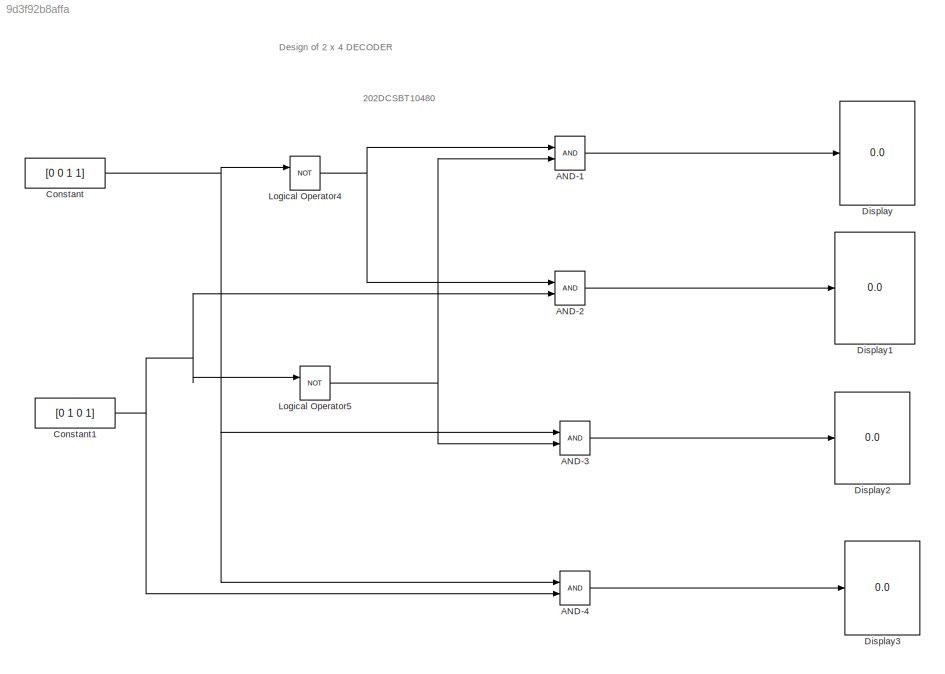
MODEL slx_9d3f92b8affa
KIND model
CONFIG AbsTol = auto
CONFIG EnableMultiTasking = off
CONFIG FixedStep = auto
CONFIG MaxStep = auto
CONFIG MinStep = auto
CONFIG RelTol = 1e-3
CONFIG SampleTimeConstraint = Unconstrained
CONFIG SolverName = VariableStepAuto
CONFIG StartTime = 0.0
CONFIG StopTime = 10.0
BLOCK [Logic] AND-1
  AllPortsSameDT = off
  IconShape = distinctive
  OutDataTypeStr = boolean
BLOCK [Logic] AND-2
  AllPortsSameDT = off
  IconShape = distinctive
  OutDataTypeStr = boolean
BLOCK [Logic] AND-3
  AllPortsSameDT = off
  IconShape = distinctive
  OutDataTypeStr = boolean
BLOCK [Logic] AND-4
  AllPortsSameDT = off
  IconShape = distinctive
  OutDataTypeStr = boolean
BLOCK [Constant] Constant
  Value = [0 0 1 1]
BLOCK [Constant] Constant1
  Value = [0 1 0 1]
BLOCK [Display] Display
  Decimation = 4
BLOCK [Display] Display1
  Decimation = 4
BLOCK [Display] Display2
  Decimation = 4
BLOCK [Display] Display3
  Decimation = 4
BLOCK [Logic] Logical Operator4
  AllPortsSameDT = off
  IconShape = distinctive
  Operator = NOT
  OutDataTypeStr = boolean
BLOCK [Logic] Logical Operator5
  AllPortsSameDT = off
  IconShape = distinctive
  Operator = NOT
  OutDataTypeStr = boolean
ANNOTATION (root): 202DCSBT10480
ANNOTATION (root): Design of 2 x 4 DECODER
LINE AND-1:1 -> Display:1
LINE AND-2:1 -> Display1:1
LINE AND-3:1 -> Display2:1
LINE AND-4:1 -> Display3:1
NET Constant1:1 -> AND-2:2, AND-4:2, Logical Operator5:1
NET Constant:1 -> AND-3:1, AND-4:1, Logical Operator4:1
NET Logical Operator4:1 -> AND-1:1, AND-2:1
NET Logical Operator5:1 -> AND-1:2, AND-3:2
note: NET lines group one-source signal fan-out (src -> all destinations, sorted); 1:1 wires keep LINE
